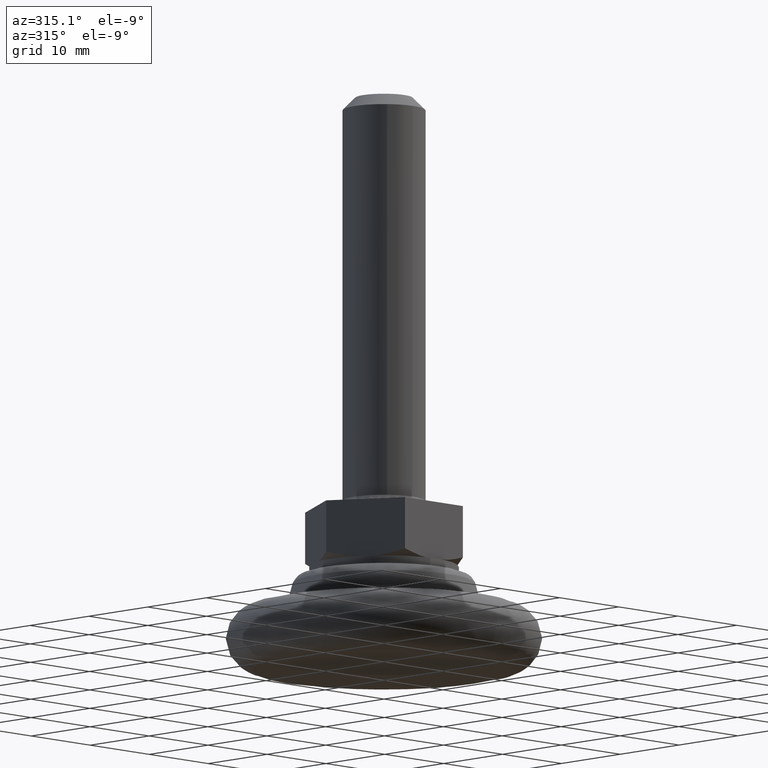
[diagram: clean part render]
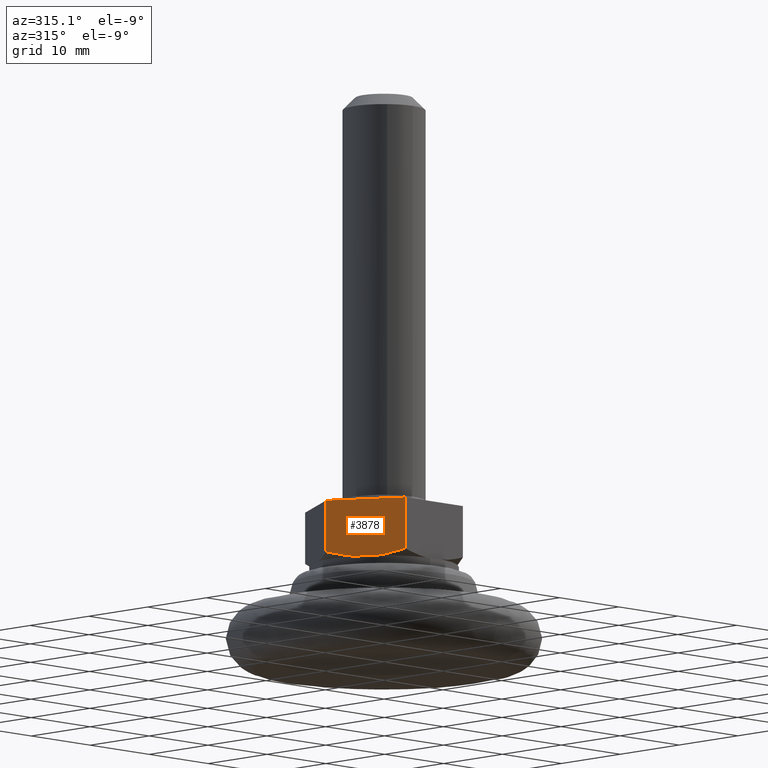
[diagram: same view with one face highlighted and labeled with its STEP entity id]
A machine part, auxiliary view. The second image highlights one B-rep face of the part: STEP entity #3878.
In plain terms, the highlighted face is a freeform B-spline surface patch.
Its self-contained STEP definition (entity closure, byte-faithful):
#3423=CARTESIAN_POINT('',(-7.361216466083871,-4.250000058744465,12.500000000000000));
#3424=VERTEX_POINT('',#3423);
#3425=CARTESIAN_POINT('',(-4.907478000000000,-8.500000000000000,13.259189833571400));
#3426=VERTEX_POINT('',#3425);
#3427=CARTESIAN_POINT('',(-7.361216466083871,-4.250000058744465,12.500000000000000));
#3428=CARTESIAN_POINT('',(-7.258457652382551,-4.427983555449853,12.500001528237430));
#3429=CARTESIAN_POINT('',(-7.155200523484947,-4.606830159444053,12.504336369269391));
#3430=CARTESIAN_POINT('',(-6.948045662554043,-4.965632924676100,12.521671443391700));
#3431=CARTESIAN_POINT('',(-6.844049023276718,-5.145760398295898,12.534782290174681));
#3432=CARTESIAN_POINT('',(-6.533099778026744,-5.684340321263402,12.586680095263119));
#3433=CARTESIAN_POINT('',(-6.327190277658608,-6.040986058600354,12.638061695052080));
#3434=CARTESIAN_POINT('',(-5.713127714106910,-7.104573680139775,12.836469672545400));
#3435=CARTESIAN_POINT('',(-5.308626304157051,-7.805190715038521,13.027586756983069));
#3436=CARTESIAN_POINT('',(-4.907478000000000,-8.500000000000000,13.259189833571400));
#3437=B_SPLINE_CURVE_WITH_KNOTS('',3,(#3427,#3428,#3429,#3430,#3431,#3432,#3433,#3434,#3435,#3436),.UNSPECIFIED.,.F.,.U.,(4,2,2,2,4),(0.500936418858553,0.562500000000000,0.625000000000000,0.750000000000000,1.0),.UNSPECIFIED.);
#3438=EDGE_CURVE('',#3424,#3426,#3437,.T.);
#3485=CARTESIAN_POINT('',(-9.814954999999999,2.843784E-016,13.259189872734400));
#3486=VERTEX_POINT('',#3485);
#3513=CARTESIAN_POINT('',(-9.814954999999999,2.843784E-016,13.259189872734400));
#3514=CARTESIAN_POINT('',(-9.414306117182475,-0.693944261776280,13.027875132388740));
#3515=CARTESIAN_POINT('',(-9.010736151128940,-1.392947988427479,12.837229851076030));
#3516=CARTESIAN_POINT('',(-8.399068598233976,-2.452387329581224,12.639150620215601));
#3517=CARTESIAN_POINT('',(-8.194124790204644,-2.807360438624699,12.587807453492360));
#3518=CARTESIAN_POINT('',(-7.781850336494017,-3.521440781036958,12.518352420992089));
#3519=CARTESIAN_POINT('',(-7.574517628319772,-3.880551586748554,12.500269270751820));
#3520=CARTESIAN_POINT('',(-7.364342396719938,-4.244585787744006,12.500001529070220));
#3521=CARTESIAN_POINT('',(-7.362779489047881,-4.247292823398474,12.500000541165480));
#3522=CARTESIAN_POINT('',(-7.361216466083871,-4.250000058744465,12.500000000000000));
#3523=B_SPLINE_CURVE_WITH_KNOTS('',3,(#3513,#3514,#3515,#3516,#3517,#3518,#3519,#3520,#3521,#3522),.UNSPECIFIED.,.F.,.U.,(4,2,2,2,4),(0.0,0.250000000000000,0.375000000000000,0.500000000000000,0.500936418858553),.UNSPECIFIED.);
#3524=EDGE_CURVE('',#3486,#3424,#3523,.T.);
#3714=CARTESIAN_POINT('',(-4.907478000000000,-8.500000000000000,19.500000000000000));
#3715=VERTEX_POINT('',#3714);
#3716=CARTESIAN_POINT('',(-9.814954999999999,0.0,19.500000000000000));
#3717=VERTEX_POINT('',#3716);
#3718=CARTESIAN_POINT('',(-4.907478000000000,-8.500000000000000,19.500000000000000));
#3719=CARTESIAN_POINT('',(-9.814954999999999,0.0,19.500000000000000));
#3720=QUASI_UNIFORM_CURVE('',1,(#3718,#3719),.UNSPECIFIED.,.F.,.U.);
#3721=EDGE_CURVE('',#3715,#3717,#3720,.T.);
#3782=CARTESIAN_POINT('',(-4.907478000000000,-8.500000000000000,19.500000000000000));
#3783=CARTESIAN_POINT('',(-4.907478000000000,-8.500000000000000,13.259189833571400));
#3784=QUASI_UNIFORM_CURVE('',1,(#3782,#3783),.UNSPECIFIED.,.F.,.U.);
#3785=EDGE_CURVE('',#3715,#3426,#3784,.T.);
#3857=CARTESIAN_POINT('',(-9.814954999999999,0.0,19.500000000000000));
#3858=CARTESIAN_POINT('',(-9.814954999999999,2.843784E-016,13.259189872734400));
#3859=QUASI_UNIFORM_CURVE('',1,(#3857,#3858),.UNSPECIFIED.,.F.,.U.);
#3860=EDGE_CURVE('',#3717,#3486,#3859,.T.);
#3866=CARTESIAN_POINT('',(-10.060083420570489,0.424574903733427,12.150350013567360));
#3867=CARTESIAN_POINT('',(-4.662349403924471,-8.924575207717119,12.150350013567360));
#3868=CARTESIAN_POINT('',(-10.060083420570489,0.424574903733427,19.849650174187271));
#3869=CARTESIAN_POINT('',(-4.662349403924471,-8.924575207717119,19.849650174187271));
#3870=B_SPLINE_SURFACE_WITH_KNOTS('',1,1,((#3866,#3868),(#3867,#3869)),.UNSPECIFIED.,.F.,.F.,.U.,(2,2),(2,2),(0.0,10.795468508633300),(0.0,7.699300160619914),.UNSPECIFIED.);
#3871=ORIENTED_EDGE('',*,*,#3860,.T.);
#3872=ORIENTED_EDGE('',*,*,#3524,.T.);
#3873=ORIENTED_EDGE('',*,*,#3438,.T.);
#3874=ORIENTED_EDGE('',*,*,#3785,.F.);
#3875=ORIENTED_EDGE('',*,*,#3721,.T.);
#3876=EDGE_LOOP('',(#3871,#3872,#3873,#3874,#3875));
#3877=FACE_OUTER_BOUND('',#3876,.T.);
#3878=ADVANCED_FACE('',(#3877),#3870,.T.);